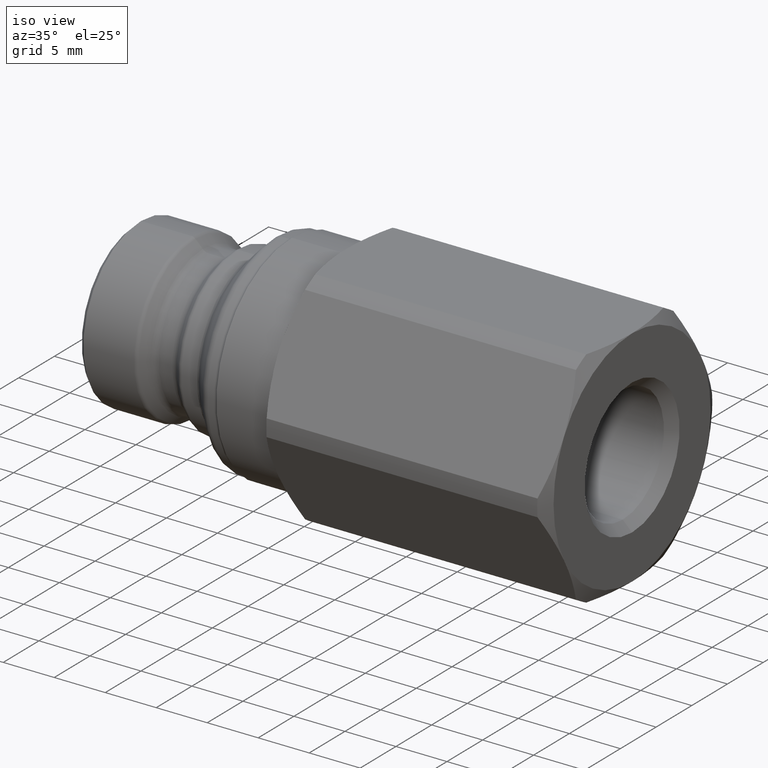
[diagram: clean part render]
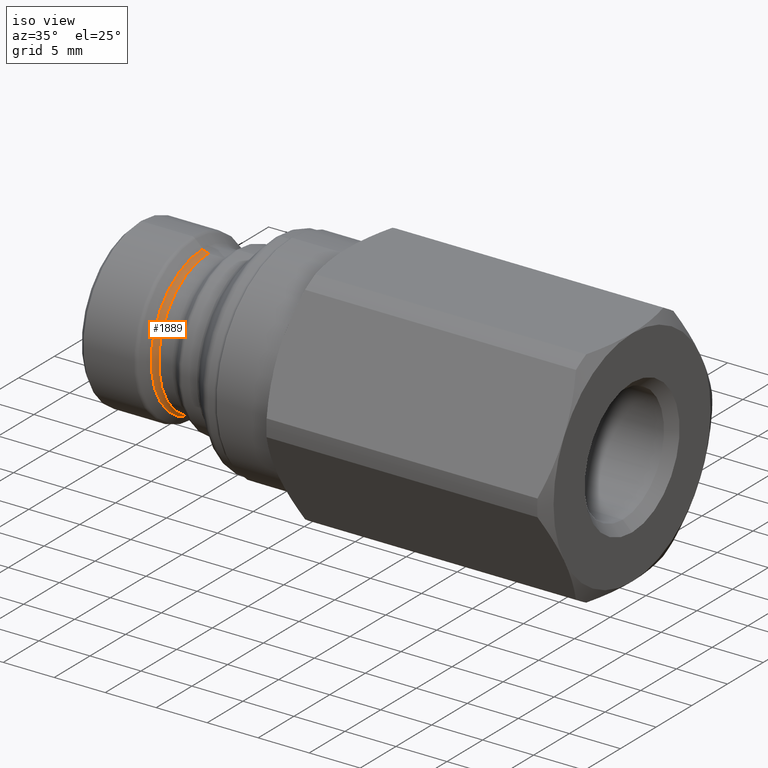
[diagram: same view with one face highlighted and labeled with its STEP entity id]
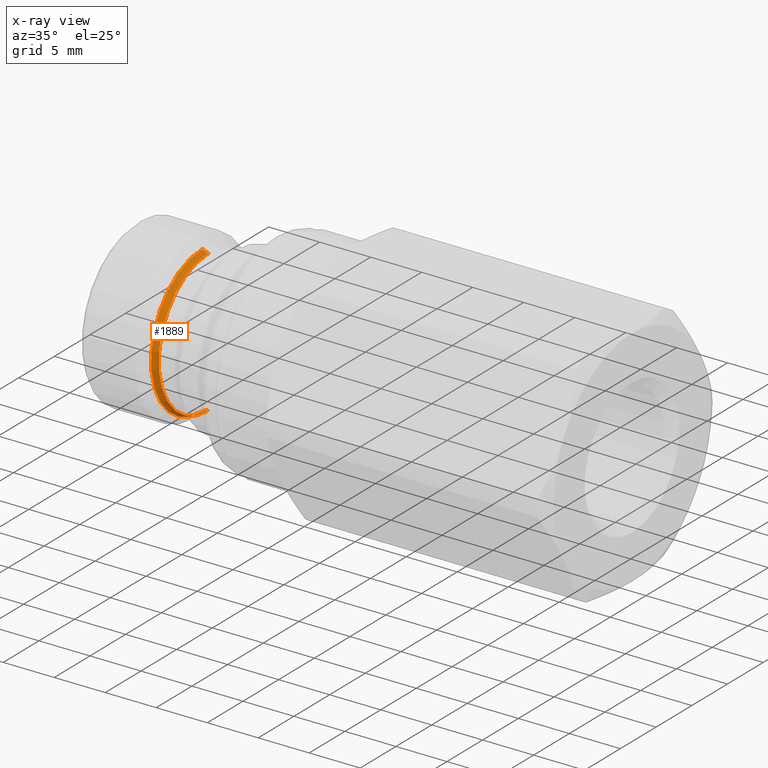
[diagram: x-ray of the same camera — body ghosted, the highlighted face saturated]
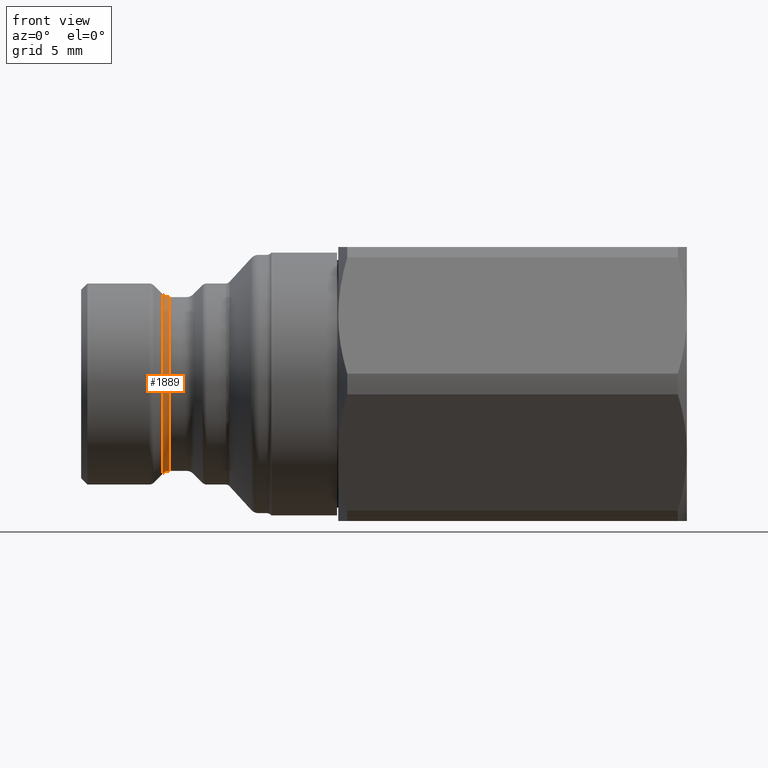
[diagram: same view with one face highlighted and labeled with its STEP entity id]
A machine part, iso view. The second image highlights one B-rep face of the part: STEP entity #1889.
The next image is the same camera in x-ray: the body ghosted, the highlighted face saturated — about 2% of this face is hidden behind the body in this view.
A second angle (front view) of the same face is appended — the face is thin or edge-on in the first view.
In plain terms, the highlighted toroidal blend (fillet) surface has major radius 7.775 mm and minor (blend) radius 0.8 mm.
Its self-contained STEP definition (entity closure, byte-faithful):
#501 = CARTESIAN_POINT ( 'NONE',  ( 7.111306819631185000, 0.0000000000000000000, 0.0000000000000000000 ) ) ;
#502 = DIRECTION ( 'NONE',  ( 1.000000000000000000, -0.0000000000000000000, -0.0000000000000000000 ) ) ;
#503 = DIRECTION ( 'NONE',  ( 0.0000000000000000000, 0.0000000000000000000, -1.000000000000000000 ) ) ;
#771 = CARTESIAN_POINT ( 'NONE',  ( 7.111306819631185000, 8.541911424052788800E-016, 6.975000000000000500 ) ) ;
#772 = CARTESIAN_POINT ( 'NONE',  ( 6.545621394681946400, 0.0000000000000000000, -7.209314575050763500 ) ) ;
#773 = CARTESIAN_POINT ( 'NONE',  ( 6.545621394681946400, 8.828864018382278300E-016, 7.209314575050763500 ) ) ;
#776 = CARTESIAN_POINT ( 'NONE',  ( 7.111306819631185000, 0.0000000000000000000, -6.975000000000000500 ) ) ;
#847 = AXIS2_PLACEMENT_3D ( 'NONE', #501, #502, #503 ) ;
#1171 = EDGE_LOOP ( 'NONE', ( #2034, #2026, #2023, #2027 ) ) ;
#1228 = CIRCLE ( 'NONE', #1727, 6.975000000000000500 ) ;
#1229 = CIRCLE ( 'NONE', #1728, 0.8000000000000003800 ) ;
#1230 = CIRCLE ( 'NONE', #1729, 7.209314575050764300 ) ;
#1231 = CIRCLE ( 'NONE', #1730, 0.8000000000000003800 ) ;
#1379 = FACE_OUTER_BOUND ( 'NONE', #1171, .T. ) ;
#1380 = TOROIDAL_SURFACE ( 'NONE', #847, 7.775000000000000400, 0.8000000000000000400 ) ;
#1516 = DIRECTION ( 'NONE',  ( 0.0000000000000000000, 1.224646799147353200E-016, 1.000000000000000000 ) ) ;
#1518 = CARTESIAN_POINT ( 'NONE',  ( 6.545621394681946400, 0.0000000000000000000, 0.0000000000000000000 ) ) ;
#1519 = DIRECTION ( 'NONE',  ( -0.0000000000000000000, -1.000000000000000000, -0.0000000000000000000 ) ) ;
#1520 = DIRECTION ( 'NONE',  ( 0.0000000000000000000, 0.0000000000000000000, -1.000000000000000000 ) ) ;
#1525 = DIRECTION ( 'NONE',  ( 0.0000000000000000000, 0.0000000000000000000, -1.000000000000000000 ) ) ;
#1526 = DIRECTION ( 'NONE',  ( 0.0000000000000000000, 1.000000000000000000, -1.224646799147353200E-016 ) ) ;
#1528 = DIRECTION ( 'NONE',  ( 1.000000000000000000, -0.0000000000000000000, -0.0000000000000000000 ) ) ;
#1530 = DIRECTION ( 'NONE',  ( -1.000000000000000000, 0.0000000000000000000, 0.0000000000000000000 ) ) ;
#1531 = CARTESIAN_POINT ( 'NONE',  ( 7.111306819631185000, 9.521628863370671200E-016, 7.775000000000000400 ) ) ;
#1532 = CARTESIAN_POINT ( 'NONE',  ( 7.111306819631185000, 0.0000000000000000000, 0.0000000000000000000 ) ) ;
#1534 = DIRECTION ( 'NONE',  ( 0.0000000000000000000, 0.0000000000000000000, 1.000000000000000000 ) ) ;
#1537 = CARTESIAN_POINT ( 'NONE',  ( 7.111306819631185000, 0.0000000000000000000, -7.775000000000000400 ) ) ;
#1573 = EDGE_CURVE ( 'NONE', #2195, #2200, #1228, .T. ) ;
#1574 = EDGE_CURVE ( 'NONE', #2195, #2197, #1229, .T. ) ;
#1575 = EDGE_CURVE ( 'NONE', #2196, #2197, #1230, .T. ) ;
#1576 = EDGE_CURVE ( 'NONE', #2200, #2196, #1231, .T. ) ;
#1727 = AXIS2_PLACEMENT_3D ( 'NONE', #1532, #1528, #1520 ) ;
#1728 = AXIS2_PLACEMENT_3D ( 'NONE', #1531, #1526, #1516 ) ;
#1729 = AXIS2_PLACEMENT_3D ( 'NONE', #1518, #1530, #1534 ) ;
#1730 = AXIS2_PLACEMENT_3D ( 'NONE', #1537, #1519, #1525 ) ;
#1889 = ADVANCED_FACE ( 'NONE', ( #1379 ), #1380, .F. ) ;
#2023 = ORIENTED_EDGE ( 'NONE', *, *, #1575, .F. ) ;
#2026 = ORIENTED_EDGE ( 'NONE', *, *, #1574, .T. ) ;
#2027 = ORIENTED_EDGE ( 'NONE', *, *, #1576, .F. ) ;
#2034 = ORIENTED_EDGE ( 'NONE', *, *, #1573, .F. ) ;
#2195 = VERTEX_POINT ( 'NONE', #771 ) ;
#2196 = VERTEX_POINT ( 'NONE', #772 ) ;
#2197 = VERTEX_POINT ( 'NONE', #773 ) ;
#2200 = VERTEX_POINT ( 'NONE', #776 ) ;